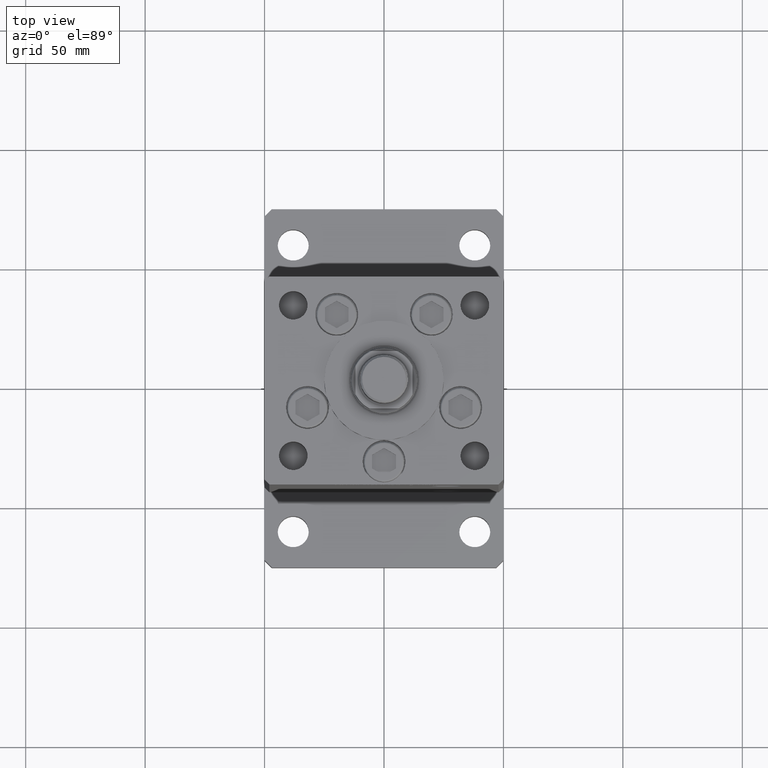
[diagram: clean part render]
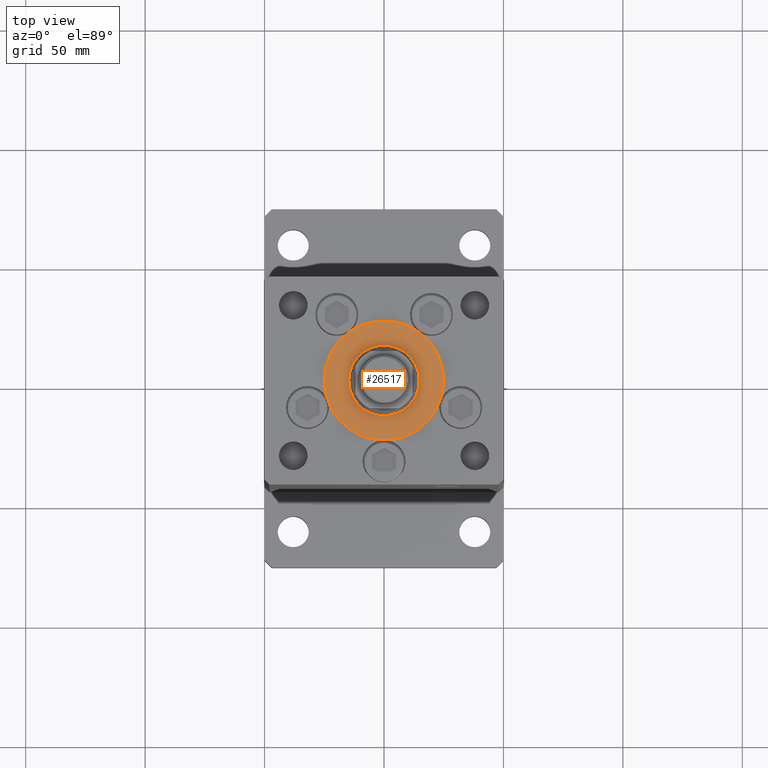
[diagram: same view with one face highlighted and labeled with its STEP entity id]
A machine part, top view. The second image highlights one B-rep face of the part: STEP entity #26517.
In plain terms, the highlighted planar face has unit normal (0, 0, 1).
Its self-contained STEP definition (entity closure, byte-faithful):
#333 = EDGE_CURVE ( 'NONE', #13992, #10824, #2138, .T. ) ;
#1853 = CIRCLE ( 'NONE', #13114, 25.00000000000000000 ) ;
#1891 = DIRECTION ( 'NONE',  ( 0.000000000000000000, 0.000000000000000000, 1.000000000000000000 ) ) ;
#2138 = CIRCLE ( 'NONE', #19619, 25.00000000000000000 ) ;
#3063 = DIRECTION ( 'NONE',  ( 0.000000000000000000, 0.000000000000000000, 1.000000000000000000 ) ) ;
#3129 = ORIENTED_EDGE ( 'NONE', *, *, #45924, .T. ) ;
#4083 = CIRCLE ( 'NONE', #34702, 14.75000000000000178 ) ;
#4441 = CARTESIAN_POINT ( 'NONE',  ( 0.000000000000000000, -6.938893903907228378E-15, 2.000000000000000000 ) ) ;
#4652 = DIRECTION ( 'NONE',  ( 0.000000000000000000, 0.000000000000000000, 1.000000000000000000 ) ) ;
#7010 = CIRCLE ( 'NONE', #27128, 14.75000000000000178 ) ;
#8773 = FACE_OUTER_BOUND ( 'NONE', #49392, .T. ) ;
#9125 = DIRECTION ( 'NONE',  ( 0.000000000000000000, 0.000000000000000000, 1.000000000000000000 ) ) ;
#10824 = VERTEX_POINT ( 'NONE', #14703 ) ;
#11210 = DIRECTION ( 'NONE',  ( 0.000000000000000000, 0.000000000000000000, 1.000000000000000000 ) ) ;
#12697 = CARTESIAN_POINT ( 'NONE',  ( 0.000000000000000000, -6.938893903907228378E-15, 2.000000000000000000 ) ) ;
#13114 = AXIS2_PLACEMENT_3D ( 'NONE', #31999, #11210, #49220 ) ;
#13992 = VERTEX_POINT ( 'NONE', #40442 ) ;
#14703 = CARTESIAN_POINT ( 'NONE',  ( 25.00000000000000000, -3.877276906038844941E-15, 2.000000000000000000 ) ) ;
#18236 = EDGE_CURVE ( 'NONE', #31546, #32905, #7010, .T. ) ;
#19619 = AXIS2_PLACEMENT_3D ( 'NONE', #12697, #9125, #51239 ) ;
#24101 = AXIS2_PLACEMENT_3D ( 'NONE', #37791, #4652, #25460 ) ;
#25460 = DIRECTION ( 'NONE',  ( 1.000000000000000000, 0.000000000000000000, -0.000000000000000000 ) ) ;
#25997 = FACE_BOUND ( 'NONE', #34555, .T. ) ;
#26517 = ADVANCED_FACE ( 'NONE', ( #25997, #8773 ), #41897, .T. ) ;
#27128 = AXIS2_PLACEMENT_3D ( 'NONE', #4441, #1891, #46047 ) ;
#30746 = ORIENTED_EDGE ( 'NONE', *, *, #18236, .F. ) ;
#31546 = VERTEX_POINT ( 'NONE', #34076 ) ;
#31819 = CARTESIAN_POINT ( 'NONE',  ( 0.000000000000000000, -6.938893903907228378E-15, 2.000000000000000000 ) ) ;
#31999 = CARTESIAN_POINT ( 'NONE',  ( 0.000000000000000000, -6.938893903907228378E-15, 2.000000000000000000 ) ) ;
#32905 = VERTEX_POINT ( 'NONE', #43461 ) ;
#34076 = CARTESIAN_POINT ( 'NONE',  ( -14.75000000000000178, -5.132539875164881787E-15, 2.000000000000000000 ) ) ;
#34539 = EDGE_CURVE ( 'NONE', #32905, #31546, #4083, .T. ) ;
#34555 = EDGE_LOOP ( 'NONE', ( #44063, #30746 ) ) ;
#34702 = AXIS2_PLACEMENT_3D ( 'NONE', #31819, #3063, #36479 ) ;
#36479 = DIRECTION ( 'NONE',  ( 1.000000000000000000, 0.000000000000000000, 0.000000000000000000 ) ) ;
#37791 = CARTESIAN_POINT ( 'NONE',  ( 0.000000000000000000, -6.938893903907228378E-15, 2.000000000000000000 ) ) ;
#40442 = CARTESIAN_POINT ( 'NONE',  ( -25.00000000000000000, -6.938893903907228378E-15, 2.000000000000000000 ) ) ;
#41897 = PLANE ( 'NONE',  #24101 ) ;
#43461 = CARTESIAN_POINT ( 'NONE',  ( 14.75000000000000178, -6.938893903907228378E-15, 2.000000000000000000 ) ) ;
#44063 = ORIENTED_EDGE ( 'NONE', *, *, #34539, .F. ) ;
#45924 = EDGE_CURVE ( 'NONE', #10824, #13992, #1853, .T. ) ;
#46047 = DIRECTION ( 'NONE',  ( 1.000000000000000000, 0.000000000000000000, 0.000000000000000000 ) ) ;
#49220 = DIRECTION ( 'NONE',  ( 1.000000000000000000, 0.000000000000000000, 0.000000000000000000 ) ) ;
#49392 = EDGE_LOOP ( 'NONE', ( #50529, #3129 ) ) ;
#50529 = ORIENTED_EDGE ( 'NONE', *, *, #333, .T. ) ;
#51239 = DIRECTION ( 'NONE',  ( 1.000000000000000000, 0.000000000000000000, 0.000000000000000000 ) ) ;